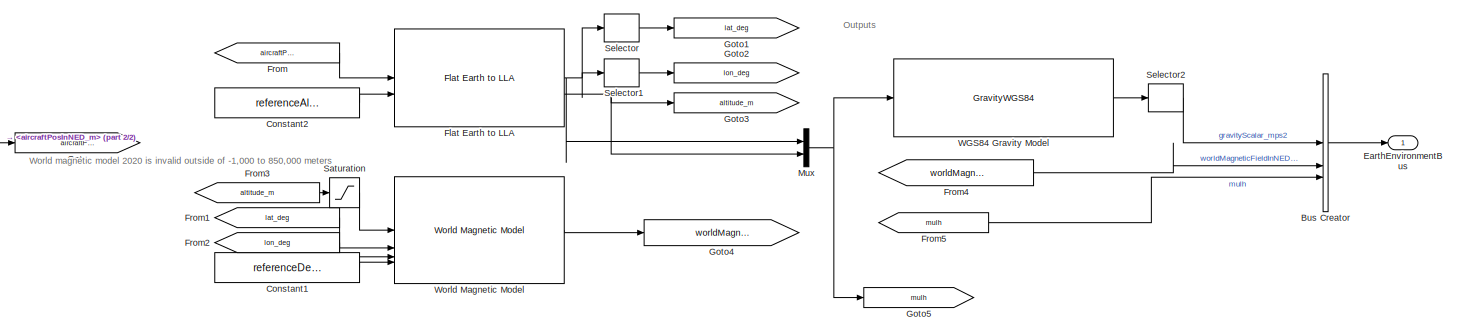
[diagram: root canvas - part 1/2, most of the canvas]
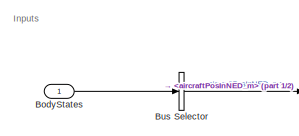
[diagram: root canvas - part 2/2, middle left region]
MODEL slx_a558c23a1d40
KIND model
BLOCK [Inport] BodyStates
  OutDataTypeStr = Bus: BodyStateBus
BLOCK [BusCreator] Bus Creator
  DisplayOption = bar
  InheritFromInputs = on
  Inputs = 3
  OutDataTypeStr = Bus: EarthEnvironmentBus
BLOCK [BusSelector] Bus Selector
  OutputSignals = aircraftPosInNED_m
BLOCK [Constant] Constant1
  Value = referenceDecimalYear_years
BLOCK [Constant] Constant2
  Value = referenceAltitude_m
BLOCK [Outport] EarthEnvironmentBus
  OutDataTypeStr = Bus: EarthEnvironmentBus
BLOCK [Reference] Flat Earth to LLA  REF=aerolibtransform2/Flat Earth to LLA
  SourceBlock = aerolibtransform2/Flat Earth to LLA
  SourceType = Flat Earth to LLA
BLOCK [From] From
  GotoTag = aircraftPosInNED_m
BLOCK [From] From1
  GotoTag = lat_deg
BLOCK [From] From2
  GotoTag = lon_deg
BLOCK [From] From3
  GotoTag = altitude_m
BLOCK [From] From4
  GotoTag = worldMagneticFieldInNED_nT
BLOCK [From] From5
  GotoTag = mulh
BLOCK [Goto] Goto
  GotoTag = aircraftPosInNED_m
BLOCK [Goto] Goto1
  GotoTag = lat_deg
BLOCK [Goto] Goto2
  GotoTag = lon_deg
BLOCK [Goto] Goto3
  GotoTag = altitude_m
BLOCK [Goto] Goto4
  GotoTag = worldMagneticFieldInNED_nT
BLOCK [Goto] Goto5
  GotoTag = mulh
BLOCK [Mux] Mux
  DisplayOption = bar
  Inputs = 2
BLOCK [Saturate] Saturation
  LowerLimit = -1000
  UpperLimit = 850000
BLOCK [Selector] Selector
  IndexOptions = Index vector (dialog)
  Indices = [1]
  InputPortWidth = 2
  OutputSizes = 1
BLOCK [Selector] Selector1
  IndexOptions = Index vector (dialog)
  Indices = [2]
  InputPortWidth = 2
  OutputSizes = 1
BLOCK [Selector] Selector2
  IndexOptions = Index vector (dialog)
  Indices = 3
  InputPortWidth = 3
  OutputSizes = 1
BLOCK [GravityWGS84] WGS84 Gravity Model  
  action = None
BLOCK [Reference] World Magnetic Model  REF=aerolibgravity2/World Magnetic Model
  AttributesFormatString = %<model>
  SourceBlock = aerolibgravity2/World Magnetic Model
  SourceType = WorldMagneticModel
ANNOTATION (root): Inputs
ANNOTATION (root): Outputs
ANNOTATION (root): World magnetic model 2020 is invalid outside of -1,000 to 850,000 meters
LINE BodyStates:1 -> Bus Selector:1
LINE Bus Creator:1 -> EarthEnvironmentBus:1
LINE Bus Selector:1 -> Goto:1
LINE Constant1:1 -> World Magnetic Model:4
LINE Constant2:1 -> Flat Earth to LLA:2
NET Flat Earth to LLA:1 -> Mux:1, Selector1:1, Selector:1
NET Flat Earth to LLA:2 -> Goto3:1, Mux:2
LINE From1:1 -> World Magnetic Model:2
LINE From2:1 -> World Magnetic Model:3
LINE From3:1 -> Saturation:1
LINE From4:1 -> Bus Creator:2
LINE From5:1 -> Bus Creator:3
LINE From:1 -> Flat Earth to LLA:1
NET Mux:1 -> Goto5:1, WGS84 Gravity Model  :1
LINE Saturation:1 -> World Magnetic Model:1
LINE Selector1:1 -> Goto2:1
LINE Selector2:1 -> Bus Creator:1
LINE Selector:1 -> Goto1:1
LINE WGS84 Gravity Model  :1 -> Selector2:1
LINE World Magnetic Model:1 -> Goto4:1
note: NET lines group one-source signal fan-out (src -> all destinations, sorted); 1:1 wires keep LINE
